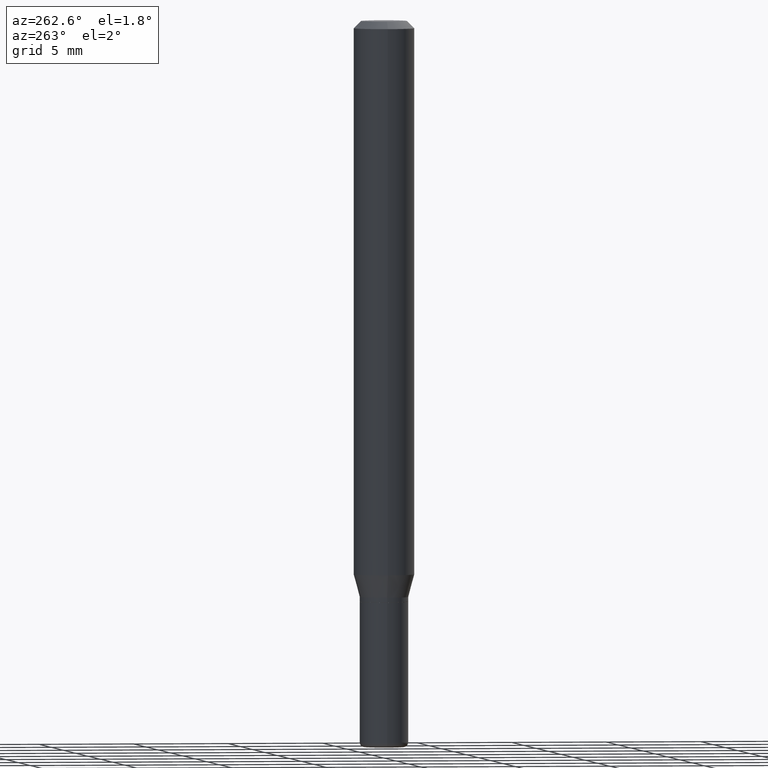
[diagram: clean part render]
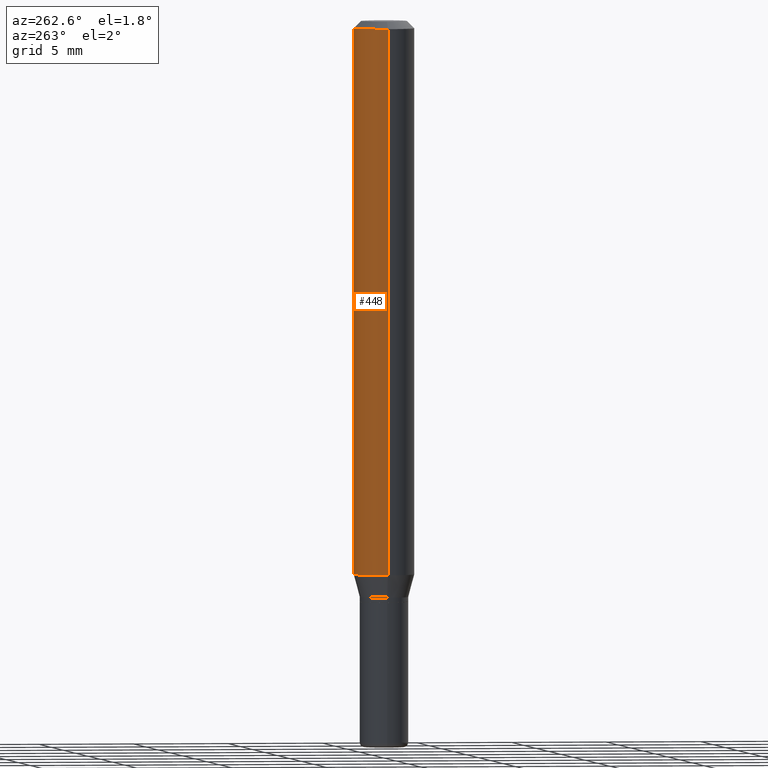
[diagram: same view with one face highlighted and labeled with its STEP entity id]
A machine part, auxiliary view. The second image highlights one B-rep face of the part: STEP entity #448.
In plain terms, the highlighted cylindrical surface (edge-blend (fillet) strip) has radius 1.5875 mm, axis along (-0, 0, 1).
Its self-contained STEP definition (entity closure, byte-faithful):
#7 = ORIENTED_EDGE ( 'NONE', *, *, #374, .F. ) ;
#20 = AXIS2_PLACEMENT_3D ( 'NONE', #435, #441, #121 ) ;
#21 = DIRECTION ( 'NONE',  ( -2.445468806185136877E-29, 3.491481338843145188E-15, 1.000000000000000000 ) ) ;
#24 = DIRECTION ( 'NONE',  ( -2.445468806185136597E-29, 3.491481338843145583E-15, 1.000000000000000000 ) ) ;
#36 = CARTESIAN_POINT ( 'NONE',  ( -0.06250000000000000000, -1.578088385863924241E-15, -0.01499999999999970281 ) ) ;
#42 = CARTESIAN_POINT ( 'NONE',  ( 0.06250000000000000000, -4.428418138700719093E-15, -1.143349364905388965 ) ) ;
#46 = VECTOR ( 'NONE', #102, 39.37007874015748143 ) ;
#67 = VERTEX_POINT ( 'NONE', #42 ) ;
#68 = DIRECTION ( 'NONE',  ( -2.445468806185136597E-29, 3.491481338843145583E-15, 1.000000000000000000 ) ) ;
#94 = VERTEX_POINT ( 'NONE', #36 ) ;
#102 = DIRECTION ( 'NONE',  ( -2.445468806185136877E-29, 3.491481338843145188E-15, 1.000000000000000000 ) ) ;
#106 = ORIENTED_EDGE ( 'NONE', *, *, #126, .F. ) ;
#111 = DIRECTION ( 'NONE',  ( 1.000000000000000000, -6.982962677686266711E-15, 0.000000000000000000 ) ) ;
#121 = DIRECTION ( 'NONE',  ( 1.000000000000000000, -6.982962677686262766E-15, 0.000000000000000000 ) ) ;
#126 = EDGE_CURVE ( 'NONE', #67, #252, #447, .T. ) ;
#129 = DIRECTION ( 'NONE',  ( 1.000000000000000000, -6.982962677686266711E-15, 4.876176775795935793E-29 ) ) ;
#147 = CYLINDRICAL_SURFACE ( 'NONE', #168, 0.06250000000000000000 ) ;
#168 = AXIS2_PLACEMENT_3D ( 'NONE', #261, #68, #129 ) ;
#184 = VECTOR ( 'NONE', #21, 39.37007874015748143 ) ;
#221 = CARTESIAN_POINT ( 'NONE',  ( 3.668203209277632395E-31, -5.237222008264614861E-17, -0.01499999999999970281 ) ) ;
#223 = CIRCLE ( 'NONE', #304, 0.06250000000000000000 ) ;
#252 = VERTEX_POINT ( 'NONE', #330 ) ;
#261 = CARTESIAN_POINT ( 'NONE',  ( 0.000000000000000000, 0.000000000000000000, 0.000000000000000000 ) ) ;
#302 = LINE ( 'NONE', #472, #184 ) ;
#304 = AXIS2_PLACEMENT_3D ( 'NONE', #221, #24, #111 ) ;
#322 = VERTEX_POINT ( 'NONE', #507 ) ;
#330 = CARTESIAN_POINT ( 'NONE',  ( 0.06250000000000000000, -4.888073874380378612E-16, -0.01499999999999970281 ) ) ;
#342 = CIRCLE ( 'NONE', #20, 0.06250000000000000000 ) ;
#374 = EDGE_CURVE ( 'NONE', #252, #94, #223, .T. ) ;
#382 = EDGE_CURVE ( 'NONE', #322, #94, #302, .T. ) ;
#396 = ORIENTED_EDGE ( 'NONE', *, *, #382, .T. ) ;
#407 = CARTESIAN_POINT ( 'NONE',  ( 0.06250000000000000000, -4.364351673553916694E-16, 3.047610484872459871E-30 ) ) ;
#431 = EDGE_LOOP ( 'NONE', ( #464, #396, #7, #106 ) ) ;
#435 = CARTESIAN_POINT ( 'NONE',  ( 2.796025206447715578E-29, -3.991982971345327424E-15, -1.143349364905388965 ) ) ;
#441 = DIRECTION ( 'NONE',  ( -2.445468806185136597E-29, 3.491481338843145583E-15, 1.000000000000000000 ) ) ;
#447 = LINE ( 'NONE', #407, #46 ) ;
#448 = ADVANCED_FACE ( 'NONE', ( #504 ), #147, .T. ) ;
#464 = ORIENTED_EDGE ( 'NONE', *, *, #479, .T. ) ;
#472 = CARTESIAN_POINT ( 'NONE',  ( -0.06250000000000000000, 4.440892098500626162E-16, -3.074334431409316114E-30 ) ) ;
#479 = EDGE_CURVE ( 'NONE', #67, #322, #342, .T. ) ;
#504 = FACE_OUTER_BOUND ( 'NONE', #431, .T. ) ;
#507 = CARTESIAN_POINT ( 'NONE',  ( -0.06250000000000000000, -3.547893761495265202E-15, -1.143349364905388965 ) ) ;